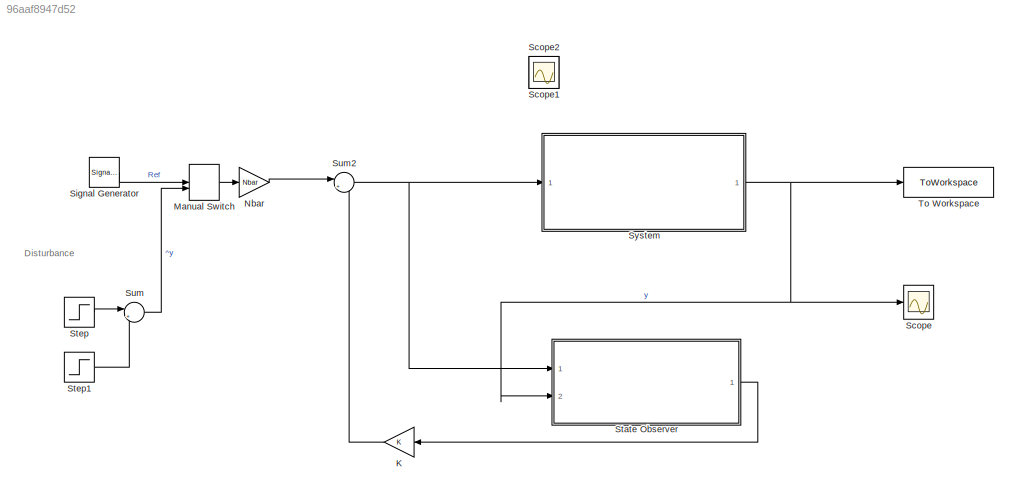
MODEL slx_96aaf8947d52
KIND model
CONFIG AbsTol = auto
CONFIG EnableMultiTasking = off
CONFIG FixedStep = auto
CONFIG MaxStep = auto
CONFIG MinStep = auto
CONFIG RelTol = 1e-3
CONFIG SampleTimeConstraint = Unconstrained
CONFIG Solver = VariableStepAuto
CONFIG SolverName = VariableStepAuto
CONFIG StartTime = 0.0
CONFIG StopTime = 500
BLOCK [Gain] K
  Gain = K
  Multiplication = Matrix(K*u)
BLOCK [ManualSwitch] Manual Switch
  CurrentSetting = 0
BLOCK [Gain] Nbar
  Gain = Nbar
  Multiplication = Matrix(K*u)
BLOCK [Scope] Scope
  Floating = off
  NumInputPorts = 1
  Ports = [1]
  ScopeSpecificationString = Simulink.scopes.TimeScopeBlockCfg('CurrentConfiguration', extmgr.ConfigurationSet(extmgr.Configuration('Core','General UI',true),extmgr.Configuration('Core','Source UI',true),extmgr.Configuration('Sources','WiredSimulink',true),extmgr.Configuration('Visuals','Time Domain',true,'SerializedDisplays',{struct('MinYLimReal','-6.43791','MaxYLimReal','6.66449','YLabelReal','','MinYLimMag','0.00000','MaxY...<+1398ch>
BLOCK [Scope] Scope1
  Floating = off
  IOType = viewer
  NumInputPorts = 1
  Ports = []
  ScopeSpecificationString = Simulink.scopes.TimeScopeBlockCfg('CurrentConfiguration', extmgr.ConfigurationSet(extmgr.Configuration('Core','General UI',true),extmgr.Configuration('Core','Source UI',true),extmgr.Configuration('Sources','WiredSimulink',true,'DataLoggingVariableName','ScopeData1'),extmgr.Configuration('Visuals','Time Domain',true,'SerializedDisplays',{struct('MinYLimReal','-1.44564','MaxYLimReal','1.44564','YLab...<+1436ch>
BLOCK [Scope] Scope2
  Floating = off
  IOType = viewer
  NumInputPorts = 1
  Ports = []
  ScopeSpecificationString = Simulink.scopes.TimeScopeBlockCfg('CurrentConfiguration', extmgr.ConfigurationSet(extmgr.Configuration('Core','General UI',true),extmgr.Configuration('Core','Source UI',true),extmgr.Configuration('Sources','WiredSimulink',true,'DataLoggingVariableName','ScopeData2'),extmgr.Configuration('Visuals','Time Domain',true,'SerializedDisplays',{struct('MinYLimReal','-1.82963','MaxYLimReal','1.86055','YLab...<+1368ch>
BLOCK [SignalGenerator] Signal Generator
  Amplitude = 5
  Frequency = 1/50
  Ports = [0, 1]
  WaveForm = square
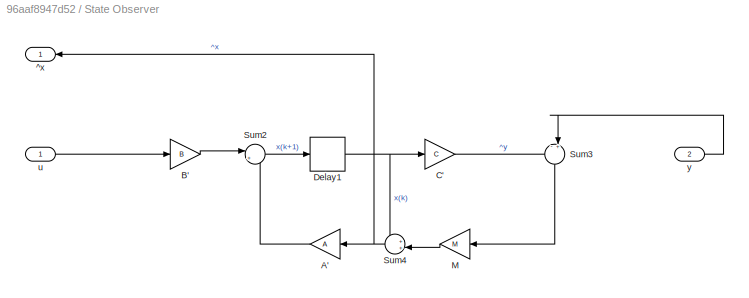
BLOCK [SubSystem] State Observer
  Ports = [2, 1]
  RequestExecContextInheritance = off
BLOCK [Gain] State Observer/A'
  Gain = A
  Multiplication = Matrix(K*u)
BLOCK [Gain] State Observer/B'
  Gain = B
  Multiplication = Matrix(K*u)
BLOCK [Gain] State Observer/C'
  Gain = C
  Multiplication = Matrix(K*u)
BLOCK [Delay] State Observer/Delay1
  DelayLength = 1
  InitialCondition = 0
  InputPortMap = u0
  Ports = [1, 1]
  SampleTime = Ts
BLOCK [Gain] State Observer/M
  Gain = M
  Multiplication = Matrix(K*u)
BLOCK [Sum] State Observer/Sum2
  Inputs = |++
  Ports = [2, 1]
BLOCK [Sum] State Observer/Sum3
  Inputs = -+|
  Ports = [2, 1]
BLOCK [Sum] State Observer/Sum4
  Inputs = ++|
  Ports = [2, 1]
BLOCK [Outport] State Observer/^x
BLOCK [Inport] State Observer/u
BLOCK [Inport] State Observer/y
  Port = 2
BLOCK [Step] Step
  Before = -1
  SampleTime = 0.1
  Time = 2
BLOCK [Step] Step1
  After = -1
  Before = 1
  SampleTime = 0.1
  Time = 4
BLOCK [Sum] Sum
  Inputs = |++
  Ports = [2, 1]
BLOCK [Sum] Sum2
  Inputs = |+-
  Ports = [2, 1]
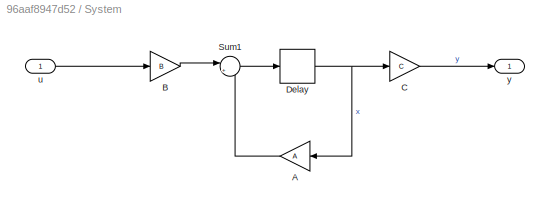
BLOCK [SubSystem] System
  Ports = [1, 1]
  RequestExecContextInheritance = off
BLOCK [Gain] System/A 
  Gain = A
  Multiplication = Matrix(K*u)
BLOCK [Gain] System/B
  Gain = B
  Multiplication = Matrix(K*u)
BLOCK [Gain] System/C
  Gain = C
  Multiplication = Matrix(K*u)
BLOCK [Delay] System/Delay
  DelayLength = 1
  InitialCondition = 0
  InputPortMap = u0
  Ports = [1, 1]
  SampleTime = Ts
BLOCK [Sum] System/Sum1
  Inputs = |++
  Ports = [2, 1]
BLOCK [Inport] System/u
BLOCK [Outport] System/y
BLOCK [ToWorkspace] To Workspace
  FixptAsFi = on
  MaxDataPoints = inf
  Ports = [1]
  SampleTime = Ts
  SaveFormat = Structure With Time
  VariableName = yout
ANNOTATION (root): Disturbance
LINE K:1 -> Sum2:2
LINE Manual Switch:1 -> Nbar:1
LINE Nbar:1 -> Sum2:1
LINE Signal Generator:1 -> Manual Switch:1
LINE State Observer/A':1 -> State Observer/Sum2:2
LINE State Observer/B':1 -> State Observer/Sum2:1
LINE State Observer/C':1 -> State Observer/Sum3:1
NET State Observer/Delay1:1 -> State Observer/C':1, State Observer/Sum4:1
LINE State Observer/M:1 -> State Observer/Sum4:2
LINE State Observer/Sum2:1 -> State Observer/Delay1:1
LINE State Observer/Sum3:1 -> State Observer/M:1
NET State Observer/Sum4:1 -> State Observer/A':1, State Observer/^x:1
LINE State Observer/u:1 -> State Observer/B':1
LINE State Observer/y:1 -> State Observer/Sum3:2
LINE State Observer:1 -> K:1
LINE Step1:1 -> Sum:2
LINE Step:1 -> Sum:1
NET Sum2:1 -> State Observer:1, System:1
LINE Sum:1 -> Manual Switch:2
LINE System/A :1 -> System/Sum1:2
LINE System/B:1 -> System/Sum1:1
LINE System/C:1 -> System/y:1
NET System/Delay:1 -> System/A :1, System/C:1
LINE System/Sum1:1 -> System/Delay:1
LINE System/u:1 -> System/B:1
NET System:1 -> Scope:1, State Observer:2, To Workspace:1
note: NET lines group one-source signal fan-out (src -> all destinations, sorted); 1:1 wires keep LINE
